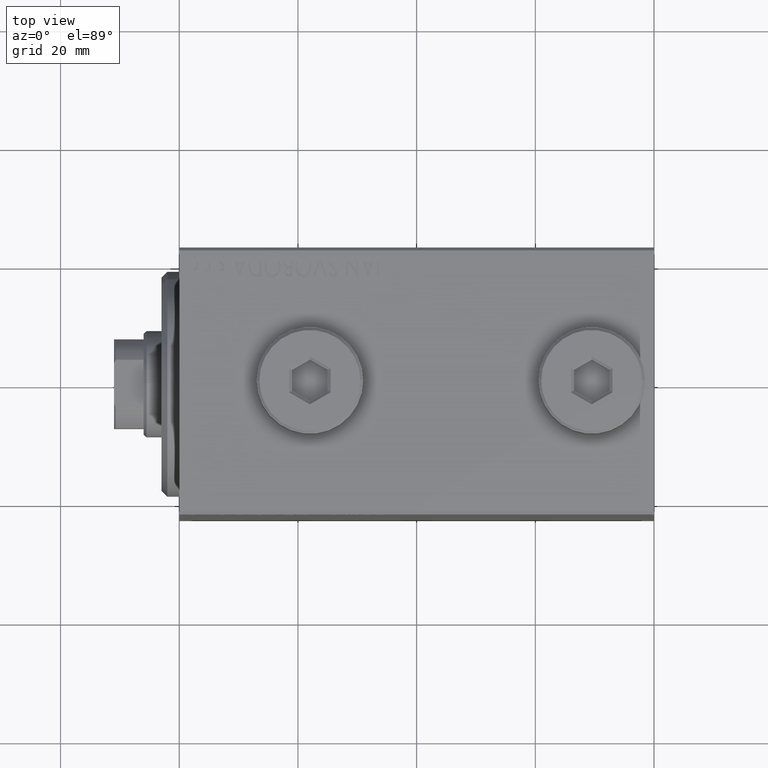
[diagram: clean part render]
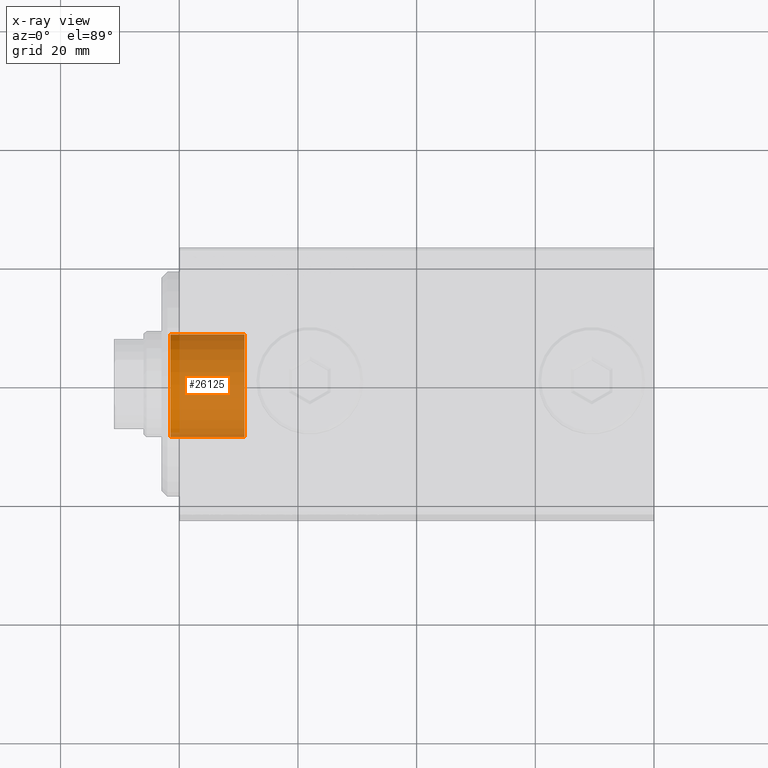
[diagram: x-ray — body ghosted, one internal face saturated and labeled with its STEP entity id]
A machine part, top view, then the same camera in x-ray: the body is ghosted and one INTERNAL B-rep face — a face not visible from any outside direction — is saturated and labeled: STEP entity #26125.
In plain terms, the highlighted cylindrical surface (partial cylindrical patch) has radius 9 mm, axis along (-1, 0, 0).
Its self-contained STEP definition (entity closure, byte-faithful):
#1327 = CIRCLE ( 'NONE', #45125, 9.000000000000000000 ) ;
#1641 = ORIENTED_EDGE ( 'NONE', *, *, #30447, .T. ) ;
#4147 = CARTESIAN_POINT ( 'NONE',  ( 1.499999999999999556, 1.102182119232617517E-15, 9.000000000000000000 ) ) ;
#4207 = DIRECTION ( 'NONE',  ( 1.000000000000000000, 0.000000000000000000, 0.000000000000000000 ) ) ;
#6191 = DIRECTION ( 'NONE',  ( 1.000000000000000000, 0.000000000000000000, 0.000000000000000000 ) ) ;
#6386 = DIRECTION ( 'NONE',  ( 1.000000000000000000, -0.000000000000000000, -0.000000000000000000 ) ) ;
#6828 = CARTESIAN_POINT ( 'NONE',  ( -11.00000000000000000, 0.000000000000000000, -9.000000000000000000 ) ) ;
#7550 = VERTEX_POINT ( 'NONE', #40792 ) ;
#9256 = VECTOR ( 'NONE', #23467, 1000.000000000000000 ) ;
#9448 = VERTEX_POINT ( 'NONE', #38418 ) ;
#11037 = EDGE_LOOP ( 'NONE', ( #13622, #38971, #1641, #21073 ) ) ;
#11494 = VECTOR ( 'NONE', #6386, 1000.000000000000000 ) ;
#13622 = ORIENTED_EDGE ( 'NONE', *, *, #15823, .F. ) ;
#13725 = DIRECTION ( 'NONE',  ( 0.000000000000000000, 0.000000000000000000, -1.000000000000000000 ) ) ;
#14248 = EDGE_CURVE ( 'NONE', #27144, #7550, #26929, .T. ) ;
#15307 = FACE_OUTER_BOUND ( 'NONE', #11037, .T. ) ;
#15823 = EDGE_CURVE ( 'NONE', #9448, #27144, #1327, .T. ) ;
#16616 = CARTESIAN_POINT ( 'NONE',  ( -11.00000000000000000, 1.102182119232617517E-15, 9.000000000000000000 ) ) ;
#19348 = AXIS2_PLACEMENT_3D ( 'NONE', #22379, #26466, #29908 ) ;
#21073 = ORIENTED_EDGE ( 'NONE', *, *, #14248, .F. ) ;
#22379 = CARTESIAN_POINT ( 'NONE',  ( -11.00000000000000000, 0.000000000000000000, 0.000000000000000000 ) ) ;
#23467 = DIRECTION ( 'NONE',  ( 1.000000000000000000, -0.000000000000000000, -0.000000000000000000 ) ) ;
#26125 = ADVANCED_FACE ( 'NONE', ( #15307 ), #39754, .F. ) ;
#26466 = DIRECTION ( 'NONE',  ( 1.000000000000000000, -0.000000000000000000, -0.000000000000000000 ) ) ;
#26929 = LINE ( 'NONE', #6828, #11494 ) ;
#27144 = VERTEX_POINT ( 'NONE', #44064 ) ;
#29908 = DIRECTION ( 'NONE',  ( 0.000000000000000000, 0.000000000000000000, -1.000000000000000000 ) ) ;
#30447 = EDGE_CURVE ( 'NONE', #42622, #7550, #41301, .T. ) ;
#30997 = LINE ( 'NONE', #16616, #9256 ) ;
#32498 = AXIS2_PLACEMENT_3D ( 'NONE', #45063, #6191, #13725 ) ;
#35697 = EDGE_CURVE ( 'NONE', #9448, #42622, #30997, .T. ) ;
#38418 = CARTESIAN_POINT ( 'NONE',  ( -11.00000000000000000, 1.102182119232617517E-15, 9.000000000000000000 ) ) ;
#38971 = ORIENTED_EDGE ( 'NONE', *, *, #35697, .T. ) ;
#39390 = CARTESIAN_POINT ( 'NONE',  ( -11.00000000000000000, 0.000000000000000000, 0.000000000000000000 ) ) ;
#39754 = CYLINDRICAL_SURFACE ( 'NONE', #19348, 9.000000000000000000 ) ;
#40792 = CARTESIAN_POINT ( 'NONE',  ( 1.499999999999999556, 0.000000000000000000, -9.000000000000000000 ) ) ;
#41301 = CIRCLE ( 'NONE', #32498, 9.000000000000000000 ) ;
#42622 = VERTEX_POINT ( 'NONE', #4147 ) ;
#43260 = DIRECTION ( 'NONE',  ( 0.000000000000000000, 0.000000000000000000, -1.000000000000000000 ) ) ;
#44064 = CARTESIAN_POINT ( 'NONE',  ( -11.00000000000000000, 0.000000000000000000, -9.000000000000000000 ) ) ;
#45063 = CARTESIAN_POINT ( 'NONE',  ( 1.499999999999999556, 0.000000000000000000, 0.000000000000000000 ) ) ;
#45125 = AXIS2_PLACEMENT_3D ( 'NONE', #39390, #4207, #43260 ) ;